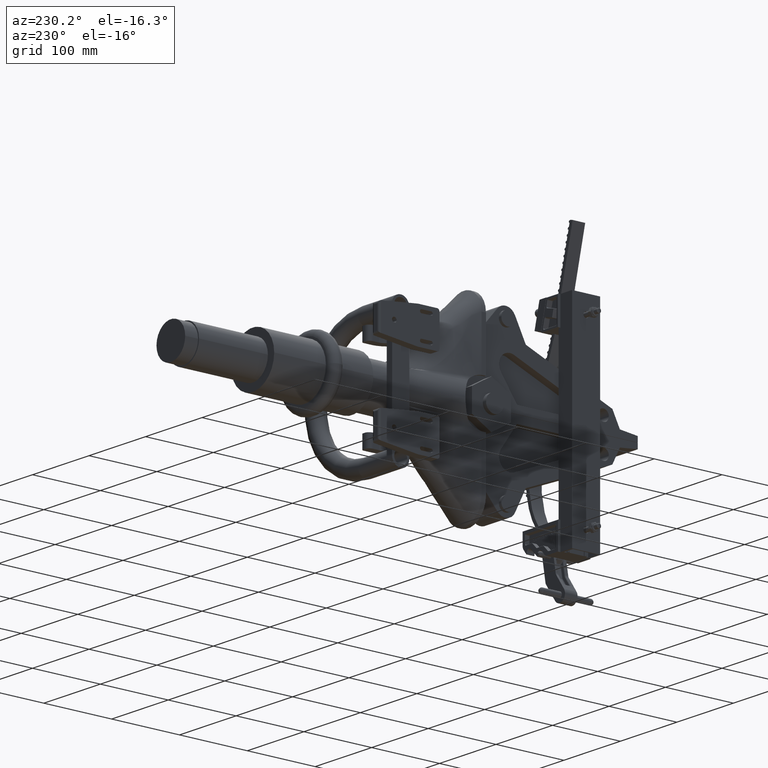
[diagram: clean part render]
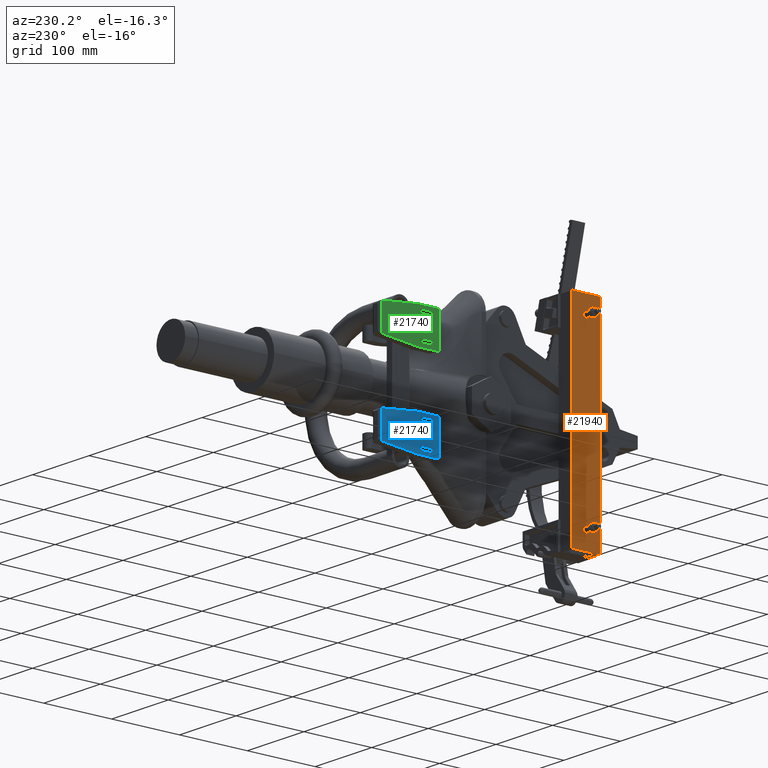
[diagram: same view with three faces highlighted in distinct colors, each labeled with its STEP entity id]
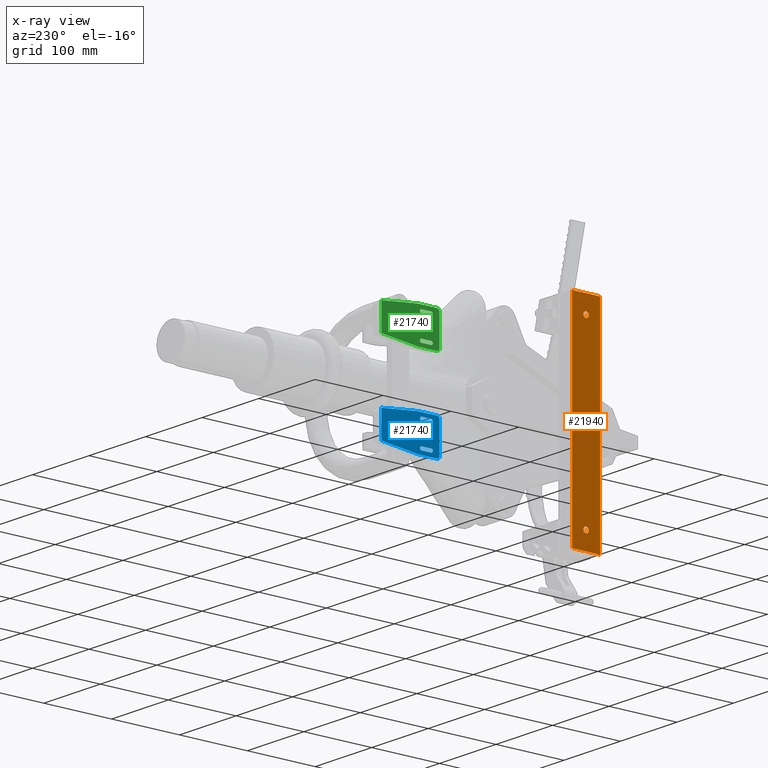
[diagram: x-ray of the same camera — body ghosted, the three highlighted faces saturated]
A machine part, auxiliary view with three faces highlighted in distinct colors.
The next image is the same camera in x-ray (body ghosted, the three faces saturated) — at least one of them is partly hidden behind the body in this view.
Their STEP definitions:

[orange] entity #21940 — the highlighted planar face has unit normal (1, 0, 0).
#2613 = AXIS2_PLACEMENT_3D ( 'NONE', #39965, #39967, #39968 ) ;
#7757 = ORIENTED_EDGE ( 'NONE', *, *, #26395, .T. ) ;
#7758 = ORIENTED_EDGE ( 'NONE', *, *, #26303, .T. ) ;
#7759 = ORIENTED_EDGE ( 'NONE', *, *, #26396, .T. ) ;
#7760 = ORIENTED_EDGE ( 'NONE', *, *, #26321, .T. ) ;
#7761 = ORIENTED_EDGE ( 'NONE', *, *, #26392, .T. ) ;
#7762 = ORIENTED_EDGE ( 'NONE', *, *, #26333, .F. ) ;
#7763 = ORIENTED_EDGE ( 'NONE', *, *, #26388, .F. ) ;
#7764 = ORIENTED_EDGE ( 'NONE', *, *, #26398, .T. ) ;
#11488 = CARTESIAN_POINT ( 'NONE',  ( -0.8125000000000000000, 0.0000000000000000000, 6.000000000000000900 ) ) ;
#11491 = CARTESIAN_POINT ( 'NONE',  ( -0.8125000000000000000, 0.0000000000000000000, -6.000000000000000900 ) ) ;
#11492 = CARTESIAN_POINT ( 'NONE',  ( -3.786143274801218600E-018, -1.707404996040164500E-017, 5.156250000000000000 ) ) ;
#11505 = CARTESIAN_POINT ( 'NONE',  ( 1.534896296187620900E-017, -1.707404996040164500E-017, 4.843750000000000900 ) ) ;
#11538 = CARTESIAN_POINT ( 'NONE',  ( 0.8125000000000000000, 0.0000000000000000000, -6.000000000000000900 ) ) ;
#11558 = CARTESIAN_POINT ( 'NONE',  ( 0.8125000000000000000, 0.0000000000000000000, 6.000000000000000900 ) ) ;
#11560 = CARTESIAN_POINT ( 'NONE',  ( -3.786143274801066800E-018, -1.707404996040164500E-017, -4.843750000000000900 ) ) ;
#11618 = CARTESIAN_POINT ( 'NONE',  ( 1.534896296187636000E-017, -1.707404996040164500E-017, -5.156250000000000000 ) ) ;
#13017 = FACE_BOUND ( 'NONE', #25346, .T. ) ;
#13021 = FACE_BOUND ( 'NONE', #25339, .T. ) ;
#13023 = FACE_OUTER_BOUND ( 'NONE', #25338, .T. ) ;
#16640 = VERTEX_POINT ( 'NONE', #11488 ) ;
#16643 = VERTEX_POINT ( 'NONE', #11491 ) ;
#16644 = VERTEX_POINT ( 'NONE', #11492 ) ;
#16657 = VERTEX_POINT ( 'NONE', #11505 ) ;
#16690 = VERTEX_POINT ( 'NONE', #11538 ) ;
#16710 = VERTEX_POINT ( 'NONE', #11558 ) ;
#16712 = VERTEX_POINT ( 'NONE', #11560 ) ;
#16770 = VERTEX_POINT ( 'NONE', #11618 ) ;
#17619 = CARTESIAN_POINT ( 'NONE',  ( -3.786143274801066800E-018, -1.707404996040164500E-017, -5.000000000000000000 ) ) ;
#17620 = DIRECTION ( 'NONE',  ( -0.0000000000000000000, 1.000000000000000000, -0.0000000000000000000 ) ) ;
#17621 = DIRECTION ( 'NONE',  ( 0.0000000000000000000, 0.0000000000000000000, 1.000000000000000000 ) ) ;
#17637 = CARTESIAN_POINT ( 'NONE',  ( -3.786143274801218600E-018, -1.707404996040164500E-017, 5.000000000000000000 ) ) ;
#17641 = DIRECTION ( 'NONE',  ( -0.0000000000000000000, 1.000000000000000000, -0.0000000000000000000 ) ) ;
#17642 = DIRECTION ( 'NONE',  ( 0.0000000000000000000, 0.0000000000000000000, 1.000000000000000000 ) ) ;
#17649 = CARTESIAN_POINT ( 'NONE',  ( 0.8125000000000000000, 0.0000000000000000000, 6.000000000000000900 ) ) ;
#17652 = DIRECTION ( 'NONE',  ( -0.0000000000000000000, -0.0000000000000000000, -1.000000000000000000 ) ) ;
#17700 = CARTESIAN_POINT ( 'NONE',  ( 0.0000000000000000000, 0.0000000000000000000, -6.000000000000000900 ) ) ;
#17705 = CARTESIAN_POINT ( 'NONE',  ( 0.0000000000000000000, 0.0000000000000000000, 6.000000000000000900 ) ) ;
#17706 = DIRECTION ( 'NONE',  ( 1.000000000000000000, 0.0000000000000000000, 0.0000000000000000000 ) ) ;
#17709 = CARTESIAN_POINT ( 'NONE',  ( -3.786143274801218600E-018, -1.707404996040164500E-017, 5.000000000000000000 ) ) ;
#17710 = DIRECTION ( 'NONE',  ( 1.000000000000000000, 0.0000000000000000000, 0.0000000000000000000 ) ) ;
#17711 = CARTESIAN_POINT ( 'NONE',  ( -3.786143274801066800E-018, -1.707404996040164500E-017, -5.000000000000000000 ) ) ;
#17713 = DIRECTION ( 'NONE',  ( -0.0000000000000000000, 1.000000000000000000, -0.0000000000000000000 ) ) ;
#17714 = DIRECTION ( 'NONE',  ( 0.0000000000000000000, 0.0000000000000000000, 1.000000000000000000 ) ) ;
#17715 = DIRECTION ( 'NONE',  ( -0.0000000000000000000, 1.000000000000000000, -0.0000000000000000000 ) ) ;
#17716 = DIRECTION ( 'NONE',  ( 0.0000000000000000000, 0.0000000000000000000, 1.000000000000000000 ) ) ;
#17717 = CARTESIAN_POINT ( 'NONE',  ( -0.8125000000000000000, 0.0000000000000000000, 6.000000000000000900 ) ) ;
#17718 = DIRECTION ( 'NONE',  ( -0.0000000000000000000, -0.0000000000000000000, -1.000000000000000000 ) ) ;
#21940 = ADVANCED_FACE ( 'NONE', ( #13017, #13021, #13023 ), #39966, .F. ) ;
#25338 = EDGE_LOOP ( 'NONE', ( #7761, #7762, #7763, #7764 ) ) ;
#25339 = EDGE_LOOP ( 'NONE', ( #7759, #7760 ) ) ;
#25346 = EDGE_LOOP ( 'NONE', ( #7757, #7758 ) ) ;
#26303 = EDGE_CURVE ( 'NONE', #16770, #16712, #56963, .T. ) ;
#26321 = EDGE_CURVE ( 'NONE', #16657, #16644, #56977, .T. ) ;
#26333 = EDGE_CURVE ( 'NONE', #16710, #16690, #56967, .T. ) ;
#26388 = EDGE_CURVE ( 'NONE', #16640, #16710, #57030, .T. ) ;
#26392 = EDGE_CURVE ( 'NONE', #16643, #16690, #57033, .T. ) ;
#26395 = EDGE_CURVE ( 'NONE', #16712, #16770, #57041, .T. ) ;
#26396 = EDGE_CURVE ( 'NONE', #16644, #16657, #57043, .T. ) ;
#26398 = EDGE_CURVE ( 'NONE', #16640, #16643, #57039, .T. ) ;
#39965 = CARTESIAN_POINT ( 'NONE',  ( 0.0000000000000000000, 0.0000000000000000000, 6.000000000000000900 ) ) ;
#39966 = PLANE ( 'NONE',  #2613 ) ;
#39967 = DIRECTION ( 'NONE',  ( 0.0000000000000000000, 1.000000000000000000, 0.0000000000000000000 ) ) ;
#39968 = DIRECTION ( 'NONE',  ( 0.0000000000000000000, -0.0000000000000000000, 1.000000000000000000 ) ) ;
#42844 = AXIS2_PLACEMENT_3D ( 'NONE', #17619, #17620, #17621 ) ;
#42847 = AXIS2_PLACEMENT_3D ( 'NONE', #17637, #17641, #17642 ) ;
#42848 = AXIS2_PLACEMENT_3D ( 'NONE', #17709, #17715, #17716 ) ;
#42851 = AXIS2_PLACEMENT_3D ( 'NONE', #17711, #17713, #17714 ) ;
#56963 = CIRCLE ( 'NONE', #42844, 0.1562499999999997200 ) ;
#56967 = LINE ( 'NONE', #17649, #56984 ) ;
#56977 = CIRCLE ( 'NONE', #42847, 0.1562499999999997200 ) ;
#56984 = VECTOR ( 'NONE', #17652, 39.37007874015748100 ) ;
#57030 = LINE ( 'NONE', #17705, #57031 ) ;
#57031 = VECTOR ( 'NONE', #17706, 39.37007874015748100 ) ;
#57033 = LINE ( 'NONE', #17700, #57037 ) ;
#57037 = VECTOR ( 'NONE', #17710, 39.37007874015748100 ) ;
#57039 = LINE ( 'NONE', #17717, #57040 ) ;
#57040 = VECTOR ( 'NONE', #17718, 39.37007874015748100 ) ;
#57041 = CIRCLE ( 'NONE', #42851, 0.1562499999999997200 ) ;
#57043 = CIRCLE ( 'NONE', #42848, 0.1562499999999997200 ) ;

[blue] entity #21740 — the highlighted planar face has unit normal (1, 0, 0).
#2425 = AXIS2_PLACEMENT_3D ( 'NONE', #37064, #37067, #37068 ) ;
#11087 = CARTESIAN_POINT ( 'NONE',  ( 0.0000000000000000000, 0.1249999999999999000, 1.000000000000000000 ) ) ;
#11103 = CARTESIAN_POINT ( 'NONE',  ( 0.0000000000000000000, 1.250000000000000000, -1.000000000000000000 ) ) ;
#11109 = CARTESIAN_POINT ( 'NONE',  ( 0.0000000000000000000, 3.375000000000000000, -0.7638888888888893900 ) ) ;
#11121 = CARTESIAN_POINT ( 'NONE',  ( -1.365923996832131600E-016, 0.4799999999999999800, -0.7824999999999996400 ) ) ;
#11127 = CARTESIAN_POINT ( 'NONE',  ( 0.0000000000000000000, 1.250000000000000000, 1.000000000000000200 ) ) ;
#11136 = CARTESIAN_POINT ( 'NONE',  ( -1.365923996832131600E-016, 0.4800000000000000900, 0.5925000000000001400 ) ) ;
#11146 = CARTESIAN_POINT ( 'NONE',  ( 0.0000000000000000000, 0.0000000000000000000, -0.8750000000000001100 ) ) ;
#11152 = CARTESIAN_POINT ( 'NONE',  ( -2.048885995248197400E-016, 1.036000000000000000, -0.7824999999999997500 ) ) ;
#11154 = CARTESIAN_POINT ( 'NONE',  ( -2.048885995248197400E-016, 1.036000000000000000, 0.5925000000000004700 ) ) ;
#11157 = CARTESIAN_POINT ( 'NONE',  ( 0.0000000000000000000, 3.375000000000000000, 0.7638888888888885100 ) ) ;
#11162 = CARTESIAN_POINT ( 'NONE',  ( 0.0000000000000000000, 0.4799999999999998700, 0.7825000000000004200 ) ) ;
#11164 = CARTESIAN_POINT ( 'NONE',  ( 0.0000000000000000000, 0.0000000000000000000, 0.8750000000000000000 ) ) ;
#11165 = CARTESIAN_POINT ( 'NONE',  ( 0.0000000000000000000, 0.1250000000000000000, -1.000000000000000000 ) ) ;
#11168 = CARTESIAN_POINT ( 'NONE',  ( 0.0000000000000000000, 0.4800000000000000900, -0.5924999999999999200 ) ) ;
#11459 = CARTESIAN_POINT ( 'NONE',  ( -2.048885995248197400E-016, 1.036000000000000000, -0.5924999999999998000 ) ) ;
#11473 = CARTESIAN_POINT ( 'NONE',  ( -2.152696219007439500E-016, 1.131000000000000000, 0.6875000000000003300 ) ) ;
#12654 = FACE_BOUND ( 'NONE', #30743, .T. ) ;
#12662 = FACE_BOUND ( 'NONE', #30738, .T. ) ;
#12664 = FACE_BOUND ( 'NONE', #30761, .T. ) ;
#12666 = FACE_OUTER_BOUND ( 'NONE', #30760, .T. ) ;
#15042 = VERTEX_POINT ( 'NONE', #11087 ) ;
#15058 = VERTEX_POINT ( 'NONE', #11103 ) ;
#15064 = VERTEX_POINT ( 'NONE', #11109 ) ;
#15076 = VERTEX_POINT ( 'NONE', #11121 ) ;
#15082 = VERTEX_POINT ( 'NONE', #11127 ) ;
#15091 = VERTEX_POINT ( 'NONE', #11136 ) ;
#15101 = VERTEX_POINT ( 'NONE', #11146 ) ;
#15107 = VERTEX_POINT ( 'NONE', #11152 ) ;
#15109 = VERTEX_POINT ( 'NONE', #11154 ) ;
#15112 = VERTEX_POINT ( 'NONE', #11157 ) ;
#15117 = VERTEX_POINT ( 'NONE', #11162 ) ;
#15119 = VERTEX_POINT ( 'NONE', #11164 ) ;
#15120 = VERTEX_POINT ( 'NONE', #11165 ) ;
#15123 = VERTEX_POINT ( 'NONE', #11168 ) ;
#16611 = VERTEX_POINT ( 'NONE', #11459 ) ;
#16625 = VERTEX_POINT ( 'NONE', #11473 ) ;
#20652 = CIRCLE ( 'NONE', #43104, 0.1329999999999999200 ) ;
#20703 = CIRCLE ( 'NONE', #43112, 0.09500000000000008400 ) ;
#20720 = CIRCLE ( 'NONE', #43115, 0.09499999999999994600 ) ;
#20836 = VECTOR ( 'NONE', #31468, 39.37007874015748100 ) ;
#20853 = CIRCLE ( 'NONE', #43123, 0.09500000000000008400 ) ;
#20862 = LINE ( 'NONE', #31467, #20836 ) ;
#20869 = CIRCLE ( 'NONE', #43126, 0.09499999999999994600 ) ;
#20877 = LINE ( 'NONE', #31472, #20901 ) ;
#20888 = LINE ( 'NONE', #31460, #20891 ) ;
#20891 = VECTOR ( 'NONE', #31461, 39.37007874015748100 ) ;
#20893 = LINE ( 'NONE', #31462, #20895 ) ;
#20895 = VECTOR ( 'NONE', #31463, 39.37007874015748100 ) ;
#20898 = VECTOR ( 'NONE', #31477, 39.37007874015748100 ) ;
#20901 = VECTOR ( 'NONE', #31473, 39.37007874015748100 ) ;
#20903 = CIRCLE ( 'NONE', #43128, 0.1329999999999999200 ) ;
#20907 = LINE ( 'NONE', #31481, #20913 ) ;
#20910 = CIRCLE ( 'NONE', #43130, 0.09500000000000001500 ) ;
#20913 = VECTOR ( 'NONE', #31482, 39.37007874015748900 ) ;
#20915 = LINE ( 'NONE', #31469, #20898 ) ;
#20917 = CIRCLE ( 'NONE', #43131, 0.1250000000000000300 ) ;
#20920 = LINE ( 'NONE', #31485, #20941 ) ;
#20922 = LINE ( 'NONE', #31483, #20933 ) ;
#20924 = LINE ( 'NONE', #31476, #20928 ) ;
#20926 = CIRCLE ( 'NONE', #43125, 0.09499999999999987600 ) ;
#20928 = VECTOR ( 'NONE', #31484, 39.37007874015748100 ) ;
#20933 = VECTOR ( 'NONE', #31486, 39.37007874015748100 ) ;
#20936 = LINE ( 'NONE', #31488, #20938 ) ;
#20938 = VECTOR ( 'NONE', #31489, 39.37007874015748900 ) ;
#20941 = VECTOR ( 'NONE', #31491, 39.37007874015748100 ) ;
#20951 = CIRCLE ( 'NONE', #43132, 0.1250000000000000300 ) ;
#21740 = ADVANCED_FACE ( 'NONE', ( #12654, #12662, #12664, #12666 ), #37063, .F. ) ;
#27764 = EDGE_CURVE ( 'NONE', #37496, #37526, #20652, .T. ) ;
#27776 = EDGE_CURVE ( 'NONE', #16625, #42241, #20703, .T. ) ;
#27780 = EDGE_CURVE ( 'NONE', #42238, #16611, #20720, .T. ) ;
#27814 = EDGE_CURVE ( 'NONE', #15109, #16625, #20853, .T. ) ;
#27818 = EDGE_CURVE ( 'NONE', #15107, #42238, #20869, .T. ) ;
#27824 = EDGE_CURVE ( 'NONE', #15076, #15107, #20888, .T. ) ;
#27825 = EDGE_CURVE ( 'NONE', #42241, #15117, #20893, .T. ) ;
#27826 = EDGE_CURVE ( 'NONE', #37526, #37496, #20903, .T. ) ;
#27827 = EDGE_CURVE ( 'NONE', #15091, #15109, #20862, .T. ) ;
#27828 = EDGE_CURVE ( 'NONE', #15117, #15091, #20910, .T. ) ;
#27829 = EDGE_CURVE ( 'NONE', #16611, #15123, #20877, .T. ) ;
#27830 = EDGE_CURVE ( 'NONE', #15119, #15042, #20917, .T. ) ;
#27831 = EDGE_CURVE ( 'NONE', #15119, #15101, #20915, .T. ) ;
#27832 = EDGE_CURVE ( 'NONE', #15123, #15076, #20926, .T. ) ;
#27833 = EDGE_CURVE ( 'NONE', #15112, #15082, #20907, .T. ) ;
#27834 = EDGE_CURVE ( 'NONE', #15082, #15042, #20924, .T. ) ;
#27835 = EDGE_CURVE ( 'NONE', #15112, #15064, #20922, .T. ) ;
#27836 = EDGE_CURVE ( 'NONE', #15058, #15064, #20936, .T. ) ;
#27837 = EDGE_CURVE ( 'NONE', #15058, #15120, #20920, .T. ) ;
#27838 = EDGE_CURVE ( 'NONE', #15120, #15101, #20951, .T. ) ;
#28570 = ORIENTED_EDGE ( 'NONE', *, *, #27826, .T. ) ;
#28571 = ORIENTED_EDGE ( 'NONE', *, *, #27764, .T. ) ;
#28572 = ORIENTED_EDGE ( 'NONE', *, *, #27827, .T. ) ;
#28573 = ORIENTED_EDGE ( 'NONE', *, *, #27814, .T. ) ;
#28574 = ORIENTED_EDGE ( 'NONE', *, *, #27776, .T. ) ;
#28575 = ORIENTED_EDGE ( 'NONE', *, *, #27825, .T. ) ;
#28576 = ORIENTED_EDGE ( 'NONE', *, *, #27828, .T. ) ;
#28577 = ORIENTED_EDGE ( 'NONE', *, *, #27824, .T. ) ;
#28578 = ORIENTED_EDGE ( 'NONE', *, *, #27818, .T. ) ;
#28579 = ORIENTED_EDGE ( 'NONE', *, *, #27780, .T. ) ;
#28580 = ORIENTED_EDGE ( 'NONE', *, *, #27829, .T. ) ;
#28581 = ORIENTED_EDGE ( 'NONE', *, *, #27832, .T. ) ;
#28582 = ORIENTED_EDGE ( 'NONE', *, *, #27831, .F. ) ;
#28583 = ORIENTED_EDGE ( 'NONE', *, *, #27830, .T. ) ;
#28584 = ORIENTED_EDGE ( 'NONE', *, *, #27834, .F. ) ;
#28585 = ORIENTED_EDGE ( 'NONE', *, *, #27833, .F. ) ;
#28586 = ORIENTED_EDGE ( 'NONE', *, *, #27835, .T. ) ;
#28587 = ORIENTED_EDGE ( 'NONE', *, *, #27836, .F. ) ;
#28588 = ORIENTED_EDGE ( 'NONE', *, *, #27837, .T. ) ;
#28589 = ORIENTED_EDGE ( 'NONE', *, *, #27838, .T. ) ;
#30738 = EDGE_LOOP ( 'NONE', ( #28572, #28573, #28574, #28575, #28576 ) ) ;
#30743 = EDGE_LOOP ( 'NONE', ( #28570, #28571 ) ) ;
#30760 = EDGE_LOOP ( 'NONE', ( #28582, #28583, #28584, #28585, #28586, #28587, #28588, #28589 ) ) ;
#30761 = EDGE_LOOP ( 'NONE', ( #28577, #28578, #28579, #28580, #28581 ) ) ;
#31306 = CARTESIAN_POINT ( 'NONE',  ( -4.780733988912460100E-016, 2.620000000000000100, 0.0000000000000000000 ) ) ;
#31316 = DIRECTION ( 'NONE',  ( 1.000000000000000000, -0.0000000000000000000, -0.0000000000000000000 ) ) ;
#31317 = DIRECTION ( 'NONE',  ( 0.0000000000000000000, 0.0000000000000000000, -1.000000000000000000 ) ) ;
#31346 = CARTESIAN_POINT ( 'NONE',  ( -2.048885995248197400E-016, 1.036000000000000000, 0.6875000000000003300 ) ) ;
#31348 = DIRECTION ( 'NONE',  ( 1.000000000000000000, 1.092739197465705500E-016, -0.0000000000000000000 ) ) ;
#31349 = DIRECTION ( 'NONE',  ( 1.092739197465705300E-016, -1.000000000000000000, 0.0000000000000000000 ) ) ;
#31356 = CARTESIAN_POINT ( 'NONE',  ( -2.048885995248197400E-016, 1.036000000000000000, -0.6874999999999998900 ) ) ;
#31358 = DIRECTION ( 'NONE',  ( 1.000000000000000000, 1.092739197465705500E-016, -0.0000000000000000000 ) ) ;
#31359 = DIRECTION ( 'NONE',  ( 1.092739197465706900E-016, -1.000000000000000000, 0.0000000000000000000 ) ) ;
#31433 = CARTESIAN_POINT ( 'NONE',  ( -2.048885995248197400E-016, 1.036000000000000000, 0.6875000000000003300 ) ) ;
#31435 = DIRECTION ( 'NONE',  ( 1.000000000000000000, 1.092739197465705500E-016, -0.0000000000000000000 ) ) ;
#31436 = DIRECTION ( 'NONE',  ( 1.092739197465705300E-016, -1.000000000000000000, 0.0000000000000000000 ) ) ;
#31439 = CARTESIAN_POINT ( 'NONE',  ( -2.048885995248197400E-016, 1.036000000000000000, -0.6874999999999998900 ) ) ;
#31447 = DIRECTION ( 'NONE',  ( 1.000000000000000000, 1.092739197465705500E-016, -0.0000000000000000000 ) ) ;
#31448 = DIRECTION ( 'NONE',  ( 1.092739197465706900E-016, -1.000000000000000000, 0.0000000000000000000 ) ) ;
#31451 = CARTESIAN_POINT ( 'NONE',  ( -1.365923996832131600E-016, 0.4799999999999998700, 0.6875000000000002200 ) ) ;
#31454 = CARTESIAN_POINT ( 'NONE',  ( -4.780733988912460100E-016, 2.620000000000000100, 0.0000000000000000000 ) ) ;
#31460 = CARTESIAN_POINT ( 'NONE',  ( -2.048885995248197400E-016, 1.036000000000000000, -0.7824999999999997500 ) ) ;
#31461 = DIRECTION ( 'NONE',  ( -1.228348918014506700E-016, 1.000000000000000000, -2.456697836029013500E-016 ) ) ;
#31462 = CARTESIAN_POINT ( 'NONE',  ( -2.048885995248197400E-016, 1.036000000000000000, 0.7825000000000004200 ) ) ;
#31463 = DIRECTION ( 'NONE',  ( 1.228348918014506700E-016, -1.000000000000000000, 0.0000000000000000000 ) ) ;
#31464 = CARTESIAN_POINT ( 'NONE',  ( 0.0000000000000000000, 0.1249999999999999000, 0.8750000000000000000 ) ) ;
#31465 = DIRECTION ( 'NONE',  ( 1.000000000000000000, -0.0000000000000000000, -0.0000000000000000000 ) ) ;
#31466 = DIRECTION ( 'NONE',  ( 0.0000000000000000000, 0.0000000000000000000, -1.000000000000000000 ) ) ;
#31467 = CARTESIAN_POINT ( 'NONE',  ( -2.048885995248197400E-016, 1.036000000000000000, 0.5925000000000004700 ) ) ;
#31468 = DIRECTION ( 'NONE',  ( -1.228348918014506700E-016, 1.000000000000000000, 1.228348918014506700E-016 ) ) ;
#31469 = CARTESIAN_POINT ( 'NONE',  ( 0.0000000000000000000, 0.0000000000000000000, 1.000000000000000000 ) ) ;
#31470 = DIRECTION ( 'NONE',  ( 1.000000000000000000, 1.092739197465705500E-016, -0.0000000000000000000 ) ) ;
#31471 = DIRECTION ( 'NONE',  ( 1.092739197465706000E-016, -1.000000000000000000, 0.0000000000000000000 ) ) ;
#31472 = CARTESIAN_POINT ( 'NONE',  ( -2.048885995248197400E-016, 1.036000000000000000, -0.5924999999999998000 ) ) ;
#31473 = DIRECTION ( 'NONE',  ( 1.228348918014507000E-016, -1.000000000000000000, -2.456697836029014000E-016 ) ) ;
#31474 = DIRECTION ( 'NONE',  ( -1.000000000000000000, -0.0000000000000000000, -0.0000000000000000000 ) ) ;
#31475 = DIRECTION ( 'NONE',  ( 0.0000000000000000000, 0.0000000000000000000, -1.000000000000000000 ) ) ;
#31476 = CARTESIAN_POINT ( 'NONE',  ( 0.0000000000000000000, 0.0000000000000000000, 1.000000000000000000 ) ) ;
#31477 = DIRECTION ( 'NONE',  ( -0.0000000000000000000, -0.0000000000000000000, -1.000000000000000000 ) ) ;
#31478 = CARTESIAN_POINT ( 'NONE',  ( -1.365923996832131600E-016, 0.4799999999999999800, -0.6874999999999998900 ) ) ;
#31479 = DIRECTION ( 'NONE',  ( 1.000000000000000000, 1.092739197465705500E-016, -0.0000000000000000000 ) ) ;
#31480 = DIRECTION ( 'NONE',  ( 1.092739197465706000E-016, -1.000000000000000000, 0.0000000000000000000 ) ) ;
#31481 = CARTESIAN_POINT ( 'NONE',  ( 0.0000000000000000000, 3.500000000000000000, 0.7499999999999996700 ) ) ;
#31482 = DIRECTION ( 'NONE',  ( 0.0000000000000000000, -0.9938837346736187900, 0.1104315260748468000 ) ) ;
#31483 = CARTESIAN_POINT ( 'NONE',  ( 0.0000000000000000000, 3.375000000000000000, 1.000000000000000000 ) ) ;
#31484 = DIRECTION ( 'NONE',  ( -0.0000000000000000000, -1.000000000000000000, -0.0000000000000000000 ) ) ;
#31485 = CARTESIAN_POINT ( 'NONE',  ( 0.0000000000000000000, 0.0000000000000000000, -1.000000000000000000 ) ) ;
#31486 = DIRECTION ( 'NONE',  ( 0.0000000000000000000, 0.0000000000000000000, -1.000000000000000000 ) ) ;
#31488 = CARTESIAN_POINT ( 'NONE',  ( 0.0000000000000000000, 3.500000000000000000, -0.7500000000000004400 ) ) ;
#31489 = DIRECTION ( 'NONE',  ( -0.0000000000000000000, 0.9938837346736187900, 0.1104315260748463300 ) ) ;
#31490 = CARTESIAN_POINT ( 'NONE',  ( 0.0000000000000000000, 0.1250000000000000000, -0.8750000000000001100 ) ) ;
#31491 = DIRECTION ( 'NONE',  ( -0.0000000000000000000, -1.000000000000000000, -0.0000000000000000000 ) ) ;
#31493 = DIRECTION ( 'NONE',  ( -1.000000000000000000, -0.0000000000000000000, -0.0000000000000000000 ) ) ;
#31494 = DIRECTION ( 'NONE',  ( 0.0000000000000000000, 0.0000000000000000000, -1.000000000000000000 ) ) ;
#34686 = CARTESIAN_POINT ( 'NONE',  ( -4.780733988912460100E-016, 2.620000000000000100, 0.1329999999999999200 ) ) ;
#34716 = CARTESIAN_POINT ( 'NONE',  ( -4.780733988912460100E-016, 2.620000000000000100, -0.1329999999999999200 ) ) ;
#34753 = CARTESIAN_POINT ( 'NONE',  ( -2.152696219007439500E-016, 1.131000000000000000, -0.6874999999999998900 ) ) ;
#34756 = CARTESIAN_POINT ( 'NONE',  ( -2.048885995248197400E-016, 1.036000000000000000, 0.7825000000000004200 ) ) ;
#37063 = PLANE ( 'NONE',  #2425 ) ;
#37064 = CARTESIAN_POINT ( 'NONE',  ( 0.0000000000000000000, 0.0000000000000000000, 1.000000000000000000 ) ) ;
#37067 = DIRECTION ( 'NONE',  ( 1.000000000000000000, 0.0000000000000000000, 0.0000000000000000000 ) ) ;
#37068 = DIRECTION ( 'NONE',  ( 0.0000000000000000000, 0.0000000000000000000, -1.000000000000000000 ) ) ;
#37496 = VERTEX_POINT ( 'NONE', #34686 ) ;
#37526 = VERTEX_POINT ( 'NONE', #34716 ) ;
#42238 = VERTEX_POINT ( 'NONE', #34753 ) ;
#42241 = VERTEX_POINT ( 'NONE', #34756 ) ;
#43104 = AXIS2_PLACEMENT_3D ( 'NONE', #31306, #31316, #31317 ) ;
#43112 = AXIS2_PLACEMENT_3D ( 'NONE', #31346, #31348, #31349 ) ;
#43115 = AXIS2_PLACEMENT_3D ( 'NONE', #31356, #31358, #31359 ) ;
#43123 = AXIS2_PLACEMENT_3D ( 'NONE', #31433, #31435, #31436 ) ;
#43125 = AXIS2_PLACEMENT_3D ( 'NONE', #31478, #31479, #31480 ) ;
#43126 = AXIS2_PLACEMENT_3D ( 'NONE', #31439, #31447, #31448 ) ;
#43128 = AXIS2_PLACEMENT_3D ( 'NONE', #31454, #31465, #31466 ) ;
#43130 = AXIS2_PLACEMENT_3D ( 'NONE', #31451, #31470, #31471 ) ;
#43131 = AXIS2_PLACEMENT_3D ( 'NONE', #31464, #31474, #31475 ) ;
#43132 = AXIS2_PLACEMENT_3D ( 'NONE', #31490, #31493, #31494 ) ;

[green] entity #21740 — the highlighted planar face has unit normal (1, 0, 0).
#2425 = AXIS2_PLACEMENT_3D ( 'NONE', #37064, #37067, #37068 ) ;
#11087 = CARTESIAN_POINT ( 'NONE',  ( 0.0000000000000000000, 0.1249999999999999000, 1.000000000000000000 ) ) ;
#11103 = CARTESIAN_POINT ( 'NONE',  ( 0.0000000000000000000, 1.250000000000000000, -1.000000000000000000 ) ) ;
#11109 = CARTESIAN_POINT ( 'NONE',  ( 0.0000000000000000000, 3.375000000000000000, -0.7638888888888893900 ) ) ;
#11121 = CARTESIAN_POINT ( 'NONE',  ( -1.365923996832131600E-016, 0.4799999999999999800, -0.7824999999999996400 ) ) ;
#11127 = CARTESIAN_POINT ( 'NONE',  ( 0.0000000000000000000, 1.250000000000000000, 1.000000000000000200 ) ) ;
#11136 = CARTESIAN_POINT ( 'NONE',  ( -1.365923996832131600E-016, 0.4800000000000000900, 0.5925000000000001400 ) ) ;
#11146 = CARTESIAN_POINT ( 'NONE',  ( 0.0000000000000000000, 0.0000000000000000000, -0.8750000000000001100 ) ) ;
#11152 = CARTESIAN_POINT ( 'NONE',  ( -2.048885995248197400E-016, 1.036000000000000000, -0.7824999999999997500 ) ) ;
#11154 = CARTESIAN_POINT ( 'NONE',  ( -2.048885995248197400E-016, 1.036000000000000000, 0.5925000000000004700 ) ) ;
#11157 = CARTESIAN_POINT ( 'NONE',  ( 0.0000000000000000000, 3.375000000000000000, 0.7638888888888885100 ) ) ;
#11162 = CARTESIAN_POINT ( 'NONE',  ( 0.0000000000000000000, 0.4799999999999998700, 0.7825000000000004200 ) ) ;
#11164 = CARTESIAN_POINT ( 'NONE',  ( 0.0000000000000000000, 0.0000000000000000000, 0.8750000000000000000 ) ) ;
#11165 = CARTESIAN_POINT ( 'NONE',  ( 0.0000000000000000000, 0.1250000000000000000, -1.000000000000000000 ) ) ;
#11168 = CARTESIAN_POINT ( 'NONE',  ( 0.0000000000000000000, 0.4800000000000000900, -0.5924999999999999200 ) ) ;
#11459 = CARTESIAN_POINT ( 'NONE',  ( -2.048885995248197400E-016, 1.036000000000000000, -0.5924999999999998000 ) ) ;
#11473 = CARTESIAN_POINT ( 'NONE',  ( -2.152696219007439500E-016, 1.131000000000000000, 0.6875000000000003300 ) ) ;
#12654 = FACE_BOUND ( 'NONE', #30743, .T. ) ;
#12662 = FACE_BOUND ( 'NONE', #30738, .T. ) ;
#12664 = FACE_BOUND ( 'NONE', #30761, .T. ) ;
#12666 = FACE_OUTER_BOUND ( 'NONE', #30760, .T. ) ;
#15042 = VERTEX_POINT ( 'NONE', #11087 ) ;
#15058 = VERTEX_POINT ( 'NONE', #11103 ) ;
#15064 = VERTEX_POINT ( 'NONE', #11109 ) ;
#15076 = VERTEX_POINT ( 'NONE', #11121 ) ;
#15082 = VERTEX_POINT ( 'NONE', #11127 ) ;
#15091 = VERTEX_POINT ( 'NONE', #11136 ) ;
#15101 = VERTEX_POINT ( 'NONE', #11146 ) ;
#15107 = VERTEX_POINT ( 'NONE', #11152 ) ;
#15109 = VERTEX_POINT ( 'NONE', #11154 ) ;
#15112 = VERTEX_POINT ( 'NONE', #11157 ) ;
#15117 = VERTEX_POINT ( 'NONE', #11162 ) ;
#15119 = VERTEX_POINT ( 'NONE', #11164 ) ;
#15120 = VERTEX_POINT ( 'NONE', #11165 ) ;
#15123 = VERTEX_POINT ( 'NONE', #11168 ) ;
#16611 = VERTEX_POINT ( 'NONE', #11459 ) ;
#16625 = VERTEX_POINT ( 'NONE', #11473 ) ;
#20652 = CIRCLE ( 'NONE', #43104, 0.1329999999999999200 ) ;
#20703 = CIRCLE ( 'NONE', #43112, 0.09500000000000008400 ) ;
#20720 = CIRCLE ( 'NONE', #43115, 0.09499999999999994600 ) ;
#20836 = VECTOR ( 'NONE', #31468, 39.37007874015748100 ) ;
#20853 = CIRCLE ( 'NONE', #43123, 0.09500000000000008400 ) ;
#20862 = LINE ( 'NONE', #31467, #20836 ) ;
#20869 = CIRCLE ( 'NONE', #43126, 0.09499999999999994600 ) ;
#20877 = LINE ( 'NONE', #31472, #20901 ) ;
#20888 = LINE ( 'NONE', #31460, #20891 ) ;
#20891 = VECTOR ( 'NONE', #31461, 39.37007874015748100 ) ;
#20893 = LINE ( 'NONE', #31462, #20895 ) ;
#20895 = VECTOR ( 'NONE', #31463, 39.37007874015748100 ) ;
#20898 = VECTOR ( 'NONE', #31477, 39.37007874015748100 ) ;
#20901 = VECTOR ( 'NONE', #31473, 39.37007874015748100 ) ;
#20903 = CIRCLE ( 'NONE', #43128, 0.1329999999999999200 ) ;
#20907 = LINE ( 'NONE', #31481, #20913 ) ;
#20910 = CIRCLE ( 'NONE', #43130, 0.09500000000000001500 ) ;
#20913 = VECTOR ( 'NONE', #31482, 39.37007874015748900 ) ;
#20915 = LINE ( 'NONE', #31469, #20898 ) ;
#20917 = CIRCLE ( 'NONE', #43131, 0.1250000000000000300 ) ;
#20920 = LINE ( 'NONE', #31485, #20941 ) ;
#20922 = LINE ( 'NONE', #31483, #20933 ) ;
#20924 = LINE ( 'NONE', #31476, #20928 ) ;
#20926 = CIRCLE ( 'NONE', #43125, 0.09499999999999987600 ) ;
#20928 = VECTOR ( 'NONE', #31484, 39.37007874015748100 ) ;
#20933 = VECTOR ( 'NONE', #31486, 39.37007874015748100 ) ;
#20936 = LINE ( 'NONE', #31488, #20938 ) ;
#20938 = VECTOR ( 'NONE', #31489, 39.37007874015748900 ) ;
#20941 = VECTOR ( 'NONE', #31491, 39.37007874015748100 ) ;
#20951 = CIRCLE ( 'NONE', #43132, 0.1250000000000000300 ) ;
#21740 = ADVANCED_FACE ( 'NONE', ( #12654, #12662, #12664, #12666 ), #37063, .F. ) ;
#27764 = EDGE_CURVE ( 'NONE', #37496, #37526, #20652, .T. ) ;
#27776 = EDGE_CURVE ( 'NONE', #16625, #42241, #20703, .T. ) ;
#27780 = EDGE_CURVE ( 'NONE', #42238, #16611, #20720, .T. ) ;
#27814 = EDGE_CURVE ( 'NONE', #15109, #16625, #20853, .T. ) ;
#27818 = EDGE_CURVE ( 'NONE', #15107, #42238, #20869, .T. ) ;
#27824 = EDGE_CURVE ( 'NONE', #15076, #15107, #20888, .T. ) ;
#27825 = EDGE_CURVE ( 'NONE', #42241, #15117, #20893, .T. ) ;
#27826 = EDGE_CURVE ( 'NONE', #37526, #37496, #20903, .T. ) ;
#27827 = EDGE_CURVE ( 'NONE', #15091, #15109, #20862, .T. ) ;
#27828 = EDGE_CURVE ( 'NONE', #15117, #15091, #20910, .T. ) ;
#27829 = EDGE_CURVE ( 'NONE', #16611, #15123, #20877, .T. ) ;
#27830 = EDGE_CURVE ( 'NONE', #15119, #15042, #20917, .T. ) ;
#27831 = EDGE_CURVE ( 'NONE', #15119, #15101, #20915, .T. ) ;
#27832 = EDGE_CURVE ( 'NONE', #15123, #15076, #20926, .T. ) ;
#27833 = EDGE_CURVE ( 'NONE', #15112, #15082, #20907, .T. ) ;
#27834 = EDGE_CURVE ( 'NONE', #15082, #15042, #20924, .T. ) ;
#27835 = EDGE_CURVE ( 'NONE', #15112, #15064, #20922, .T. ) ;
#27836 = EDGE_CURVE ( 'NONE', #15058, #15064, #20936, .T. ) ;
#27837 = EDGE_CURVE ( 'NONE', #15058, #15120, #20920, .T. ) ;
#27838 = EDGE_CURVE ( 'NONE', #15120, #15101, #20951, .T. ) ;
#28570 = ORIENTED_EDGE ( 'NONE', *, *, #27826, .T. ) ;
#28571 = ORIENTED_EDGE ( 'NONE', *, *, #27764, .T. ) ;
#28572 = ORIENTED_EDGE ( 'NONE', *, *, #27827, .T. ) ;
#28573 = ORIENTED_EDGE ( 'NONE', *, *, #27814, .T. ) ;
#28574 = ORIENTED_EDGE ( 'NONE', *, *, #27776, .T. ) ;
#28575 = ORIENTED_EDGE ( 'NONE', *, *, #27825, .T. ) ;
#28576 = ORIENTED_EDGE ( 'NONE', *, *, #27828, .T. ) ;
#28577 = ORIENTED_EDGE ( 'NONE', *, *, #27824, .T. ) ;
#28578 = ORIENTED_EDGE ( 'NONE', *, *, #27818, .T. ) ;
#28579 = ORIENTED_EDGE ( 'NONE', *, *, #27780, .T. ) ;
#28580 = ORIENTED_EDGE ( 'NONE', *, *, #27829, .T. ) ;
#28581 = ORIENTED_EDGE ( 'NONE', *, *, #27832, .T. ) ;
#28582 = ORIENTED_EDGE ( 'NONE', *, *, #27831, .F. ) ;
#28583 = ORIENTED_EDGE ( 'NONE', *, *, #27830, .T. ) ;
#28584 = ORIENTED_EDGE ( 'NONE', *, *, #27834, .F. ) ;
#28585 = ORIENTED_EDGE ( 'NONE', *, *, #27833, .F. ) ;
#28586 = ORIENTED_EDGE ( 'NONE', *, *, #27835, .T. ) ;
#28587 = ORIENTED_EDGE ( 'NONE', *, *, #27836, .F. ) ;
#28588 = ORIENTED_EDGE ( 'NONE', *, *, #27837, .T. ) ;
#28589 = ORIENTED_EDGE ( 'NONE', *, *, #27838, .T. ) ;
#30738 = EDGE_LOOP ( 'NONE', ( #28572, #28573, #28574, #28575, #28576 ) ) ;
#30743 = EDGE_LOOP ( 'NONE', ( #28570, #28571 ) ) ;
#30760 = EDGE_LOOP ( 'NONE', ( #28582, #28583, #28584, #28585, #28586, #28587, #28588, #28589 ) ) ;
#30761 = EDGE_LOOP ( 'NONE', ( #28577, #28578, #28579, #28580, #28581 ) ) ;
#31306 = CARTESIAN_POINT ( 'NONE',  ( -4.780733988912460100E-016, 2.620000000000000100, 0.0000000000000000000 ) ) ;
#31316 = DIRECTION ( 'NONE',  ( 1.000000000000000000, -0.0000000000000000000, -0.0000000000000000000 ) ) ;
#31317 = DIRECTION ( 'NONE',  ( 0.0000000000000000000, 0.0000000000000000000, -1.000000000000000000 ) ) ;
#31346 = CARTESIAN_POINT ( 'NONE',  ( -2.048885995248197400E-016, 1.036000000000000000, 0.6875000000000003300 ) ) ;
#31348 = DIRECTION ( 'NONE',  ( 1.000000000000000000, 1.092739197465705500E-016, -0.0000000000000000000 ) ) ;
#31349 = DIRECTION ( 'NONE',  ( 1.092739197465705300E-016, -1.000000000000000000, 0.0000000000000000000 ) ) ;
#31356 = CARTESIAN_POINT ( 'NONE',  ( -2.048885995248197400E-016, 1.036000000000000000, -0.6874999999999998900 ) ) ;
#31358 = DIRECTION ( 'NONE',  ( 1.000000000000000000, 1.092739197465705500E-016, -0.0000000000000000000 ) ) ;
#31359 = DIRECTION ( 'NONE',  ( 1.092739197465706900E-016, -1.000000000000000000, 0.0000000000000000000 ) ) ;
#31433 = CARTESIAN_POINT ( 'NONE',  ( -2.048885995248197400E-016, 1.036000000000000000, 0.6875000000000003300 ) ) ;
#31435 = DIRECTION ( 'NONE',  ( 1.000000000000000000, 1.092739197465705500E-016, -0.0000000000000000000 ) ) ;
#31436 = DIRECTION ( 'NONE',  ( 1.092739197465705300E-016, -1.000000000000000000, 0.0000000000000000000 ) ) ;
#31439 = CARTESIAN_POINT ( 'NONE',  ( -2.048885995248197400E-016, 1.036000000000000000, -0.6874999999999998900 ) ) ;
#31447 = DIRECTION ( 'NONE',  ( 1.000000000000000000, 1.092739197465705500E-016, -0.0000000000000000000 ) ) ;
#31448 = DIRECTION ( 'NONE',  ( 1.092739197465706900E-016, -1.000000000000000000, 0.0000000000000000000 ) ) ;
#31451 = CARTESIAN_POINT ( 'NONE',  ( -1.365923996832131600E-016, 0.4799999999999998700, 0.6875000000000002200 ) ) ;
#31454 = CARTESIAN_POINT ( 'NONE',  ( -4.780733988912460100E-016, 2.620000000000000100, 0.0000000000000000000 ) ) ;
#31460 = CARTESIAN_POINT ( 'NONE',  ( -2.048885995248197400E-016, 1.036000000000000000, -0.7824999999999997500 ) ) ;
#31461 = DIRECTION ( 'NONE',  ( -1.228348918014506700E-016, 1.000000000000000000, -2.456697836029013500E-016 ) ) ;
#31462 = CARTESIAN_POINT ( 'NONE',  ( -2.048885995248197400E-016, 1.036000000000000000, 0.7825000000000004200 ) ) ;
#31463 = DIRECTION ( 'NONE',  ( 1.228348918014506700E-016, -1.000000000000000000, 0.0000000000000000000 ) ) ;
#31464 = CARTESIAN_POINT ( 'NONE',  ( 0.0000000000000000000, 0.1249999999999999000, 0.8750000000000000000 ) ) ;
#31465 = DIRECTION ( 'NONE',  ( 1.000000000000000000, -0.0000000000000000000, -0.0000000000000000000 ) ) ;
#31466 = DIRECTION ( 'NONE',  ( 0.0000000000000000000, 0.0000000000000000000, -1.000000000000000000 ) ) ;
#31467 = CARTESIAN_POINT ( 'NONE',  ( -2.048885995248197400E-016, 1.036000000000000000, 0.5925000000000004700 ) ) ;
#31468 = DIRECTION ( 'NONE',  ( -1.228348918014506700E-016, 1.000000000000000000, 1.228348918014506700E-016 ) ) ;
#31469 = CARTESIAN_POINT ( 'NONE',  ( 0.0000000000000000000, 0.0000000000000000000, 1.000000000000000000 ) ) ;
#31470 = DIRECTION ( 'NONE',  ( 1.000000000000000000, 1.092739197465705500E-016, -0.0000000000000000000 ) ) ;
#31471 = DIRECTION ( 'NONE',  ( 1.092739197465706000E-016, -1.000000000000000000, 0.0000000000000000000 ) ) ;
#31472 = CARTESIAN_POINT ( 'NONE',  ( -2.048885995248197400E-016, 1.036000000000000000, -0.5924999999999998000 ) ) ;
#31473 = DIRECTION ( 'NONE',  ( 1.228348918014507000E-016, -1.000000000000000000, -2.456697836029014000E-016 ) ) ;
#31474 = DIRECTION ( 'NONE',  ( -1.000000000000000000, -0.0000000000000000000, -0.0000000000000000000 ) ) ;
#31475 = DIRECTION ( 'NONE',  ( 0.0000000000000000000, 0.0000000000000000000, -1.000000000000000000 ) ) ;
#31476 = CARTESIAN_POINT ( 'NONE',  ( 0.0000000000000000000, 0.0000000000000000000, 1.000000000000000000 ) ) ;
#31477 = DIRECTION ( 'NONE',  ( -0.0000000000000000000, -0.0000000000000000000, -1.000000000000000000 ) ) ;
#31478 = CARTESIAN_POINT ( 'NONE',  ( -1.365923996832131600E-016, 0.4799999999999999800, -0.6874999999999998900 ) ) ;
#31479 = DIRECTION ( 'NONE',  ( 1.000000000000000000, 1.092739197465705500E-016, -0.0000000000000000000 ) ) ;
#31480 = DIRECTION ( 'NONE',  ( 1.092739197465706000E-016, -1.000000000000000000, 0.0000000000000000000 ) ) ;
#31481 = CARTESIAN_POINT ( 'NONE',  ( 0.0000000000000000000, 3.500000000000000000, 0.7499999999999996700 ) ) ;
#31482 = DIRECTION ( 'NONE',  ( 0.0000000000000000000, -0.9938837346736187900, 0.1104315260748468000 ) ) ;
#31483 = CARTESIAN_POINT ( 'NONE',  ( 0.0000000000000000000, 3.375000000000000000, 1.000000000000000000 ) ) ;
#31484 = DIRECTION ( 'NONE',  ( -0.0000000000000000000, -1.000000000000000000, -0.0000000000000000000 ) ) ;
#31485 = CARTESIAN_POINT ( 'NONE',  ( 0.0000000000000000000, 0.0000000000000000000, -1.000000000000000000 ) ) ;
#31486 = DIRECTION ( 'NONE',  ( 0.0000000000000000000, 0.0000000000000000000, -1.000000000000000000 ) ) ;
#31488 = CARTESIAN_POINT ( 'NONE',  ( 0.0000000000000000000, 3.500000000000000000, -0.7500000000000004400 ) ) ;
#31489 = DIRECTION ( 'NONE',  ( -0.0000000000000000000, 0.9938837346736187900, 0.1104315260748463300 ) ) ;
#31490 = CARTESIAN_POINT ( 'NONE',  ( 0.0000000000000000000, 0.1250000000000000000, -0.8750000000000001100 ) ) ;
#31491 = DIRECTION ( 'NONE',  ( -0.0000000000000000000, -1.000000000000000000, -0.0000000000000000000 ) ) ;
#31493 = DIRECTION ( 'NONE',  ( -1.000000000000000000, -0.0000000000000000000, -0.0000000000000000000 ) ) ;
#31494 = DIRECTION ( 'NONE',  ( 0.0000000000000000000, 0.0000000000000000000, -1.000000000000000000 ) ) ;
#34686 = CARTESIAN_POINT ( 'NONE',  ( -4.780733988912460100E-016, 2.620000000000000100, 0.1329999999999999200 ) ) ;
#34716 = CARTESIAN_POINT ( 'NONE',  ( -4.780733988912460100E-016, 2.620000000000000100, -0.1329999999999999200 ) ) ;
#34753 = CARTESIAN_POINT ( 'NONE',  ( -2.152696219007439500E-016, 1.131000000000000000, -0.6874999999999998900 ) ) ;
#34756 = CARTESIAN_POINT ( 'NONE',  ( -2.048885995248197400E-016, 1.036000000000000000, 0.7825000000000004200 ) ) ;
#37063 = PLANE ( 'NONE',  #2425 ) ;
#37064 = CARTESIAN_POINT ( 'NONE',  ( 0.0000000000000000000, 0.0000000000000000000, 1.000000000000000000 ) ) ;
#37067 = DIRECTION ( 'NONE',  ( 1.000000000000000000, 0.0000000000000000000, 0.0000000000000000000 ) ) ;
#37068 = DIRECTION ( 'NONE',  ( 0.0000000000000000000, 0.0000000000000000000, -1.000000000000000000 ) ) ;
#37496 = VERTEX_POINT ( 'NONE', #34686 ) ;
#37526 = VERTEX_POINT ( 'NONE', #34716 ) ;
#42238 = VERTEX_POINT ( 'NONE', #34753 ) ;
#42241 = VERTEX_POINT ( 'NONE', #34756 ) ;
#43104 = AXIS2_PLACEMENT_3D ( 'NONE', #31306, #31316, #31317 ) ;
#43112 = AXIS2_PLACEMENT_3D ( 'NONE', #31346, #31348, #31349 ) ;
#43115 = AXIS2_PLACEMENT_3D ( 'NONE', #31356, #31358, #31359 ) ;
#43123 = AXIS2_PLACEMENT_3D ( 'NONE', #31433, #31435, #31436 ) ;
#43125 = AXIS2_PLACEMENT_3D ( 'NONE', #31478, #31479, #31480 ) ;
#43126 = AXIS2_PLACEMENT_3D ( 'NONE', #31439, #31447, #31448 ) ;
#43128 = AXIS2_PLACEMENT_3D ( 'NONE', #31454, #31465, #31466 ) ;
#43130 = AXIS2_PLACEMENT_3D ( 'NONE', #31451, #31470, #31471 ) ;
#43131 = AXIS2_PLACEMENT_3D ( 'NONE', #31464, #31474, #31475 ) ;
#43132 = AXIS2_PLACEMENT_3D ( 'NONE', #31490, #31493, #31494 ) ;